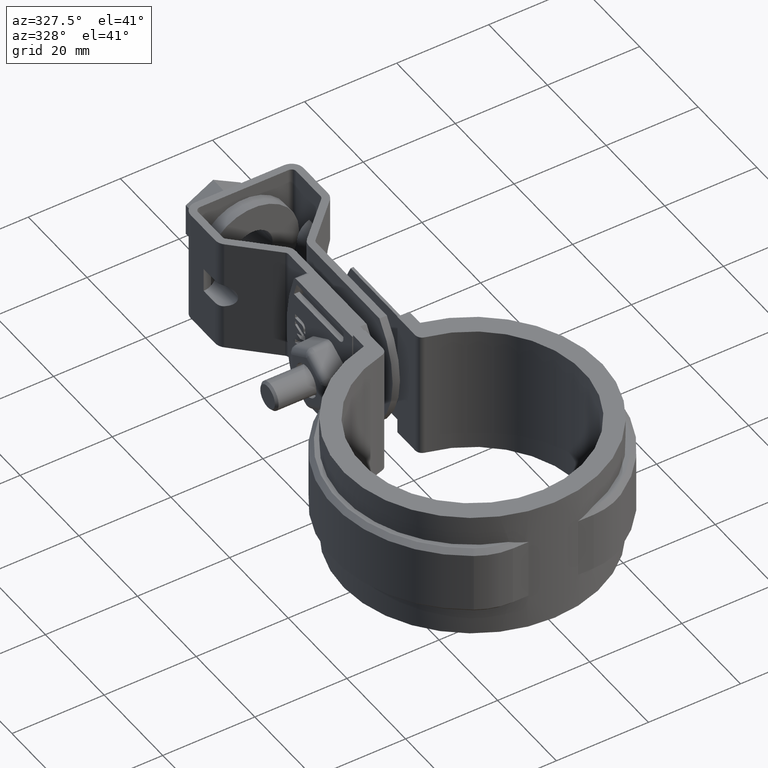
[diagram: clean part render]
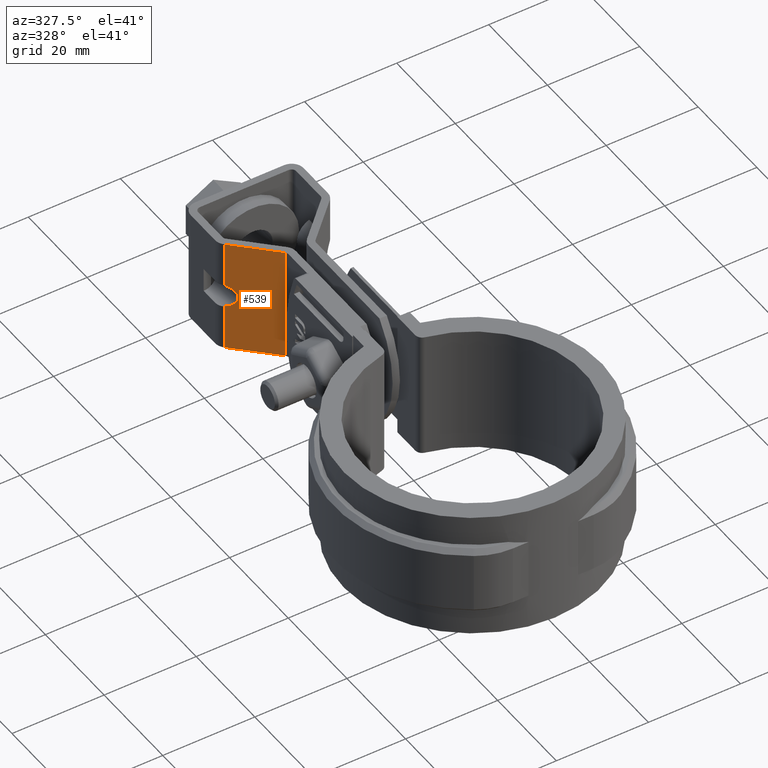
[diagram: same view with one face highlighted and labeled with its STEP entity id]
A machine part, auxiliary view. The second image highlights one B-rep face of the part: STEP entity #539.
In plain terms, the highlighted planar face has unit normal (-0.6983, -0.7158, 0).
Its self-contained STEP definition (entity closure, byte-faithful):
#539 = ADVANCED_FACE( '', ( #1079 ), #1080, .T. );
#1079 = FACE_OUTER_BOUND( '', #2423, .T. );
#1080 = PLANE( '', #2424 );
#2423 = EDGE_LOOP( '', ( #5517, #5518, #5519, #5520, #5521, #5522 ) );
#2424 = AXIS2_PLACEMENT_3D( '', #5523, #5524, #5525 );
#5517 = ORIENTED_EDGE( '', *, *, #7438, .F. );
#5518 = ORIENTED_EDGE( '', *, *, #7393, .T. );
#5519 = ORIENTED_EDGE( '', *, *, #7342, .T. );
#5520 = ORIENTED_EDGE( '', *, *, #7423, .T. );
#5521 = ORIENTED_EDGE( '', *, *, #7413, .F. );
#5522 = ORIENTED_EDGE( '', *, *, #7447, .T. );
#5523 = CARTESIAN_POINT( '', ( -3.90167616505223, 59.2550949504980, -6.12410261391361E-008 ) );
#5524 = DIRECTION( '', ( -0.698323835528018, -0.715781964520927, 3.65652942179987E-010 ) );
#5525 = DIRECTION( '', ( 0.715781964520927, -0.698323835528018, 3.53887801810090E-010 ) );
#7342 = EDGE_CURVE( '', #8607, #8605, #8608, .T. );
#7393 = EDGE_CURVE( '', #8688, #8607, #8691, .T. );
#7413 = EDGE_CURVE( '', #8725, #8726, #8727, .T. );
#7423 = EDGE_CURVE( '', #8605, #8726, #8741, .T. );
#7438 = EDGE_CURVE( '', #8688, #8762, #8763, .T. );
#7447 = EDGE_CURVE( '', #8725, #8762, #8776, .T. );
#8605 = VERTEX_POINT( '', #12136 );
#8607 = VERTEX_POINT( '', #12138 );
#8608 = LINE( '', #12139, #12140 );
#8688 = VERTEX_POINT( '', #12276 );
#8691 = LINE( '', #12280, #12281 );
#8725 = VERTEX_POINT( '', #12334 );
#8726 = VERTEX_POINT( '', #12335 );
#8727 = ELLIPSE( '', #12336, 3.70224472166266, 2.64999999999997 );
#8741 = LINE( '', #12371, #12372 );
#8762 = VERTEX_POINT( '', #12403 );
#8763 = LINE( '', #12404, #12405 );
#8776 = LINE( '', #12422, #12423 );
#12136 = CARTESIAN_POINT( '', ( -11.4656419729876, 66.6345734462094, -6.49807152530713E-008 ) );
#12138 = CARTESIAN_POINT( '', ( -3.30167616505020, 58.6697291239105, -6.09443884247440E-008 ) );
#12139 = CARTESIAN_POINT( '', ( -3.90167616505223, 59.2550949504980, -6.12410261391361E-008 ) );
#12140 = VECTOR( '', #14059, 1000.00000000000 );
#12276 = CARTESIAN_POINT( '', ( -3.30167616510114, 58.6697291111891, -25.0000000609444 ) );
#12280 = CARTESIAN_POINT( '', ( -3.30167616505020, 58.6697291239105, -6.09444023025318E-008 ) );
#12281 = VECTOR( '', #14136, 1000.00000000000 );
#12334 = CARTESIAN_POINT( '', ( -11.4656419730182, 66.6345734385606, -15.0312611112789 ) );
#12335 = CARTESIAN_POINT( '', ( -11.4656419730079, 66.6345734411367, -9.96873901868248 ) );
#12336 = AXIS2_PLACEMENT_3D( '', #14170, #14171, #14172 );
#12371 = CARTESIAN_POINT( '', ( -11.4656419729876, 66.6345734462094, -6.49807152530713E-008 ) );
#12372 = VECTOR( '', #14184, 1000.00000000000 );
#12403 = CARTESIAN_POINT( '', ( -11.4656419730386, 66.6345734334880, -25.0000000649807 ) );
#12404 = CARTESIAN_POINT( '', ( -3.90167616510318, 59.2550949377766, -25.0000000612410 ) );
#12405 = VECTOR( '', #14207, 1000.00000000000 );
#12422 = CARTESIAN_POINT( '', ( -11.4656419729876, 66.6345734462094, -6.49807152530713E-008 ) );
#12423 = VECTOR( '', #14224, 1000.00000000000 );
#14059 = DIRECTION( '', ( -0.715781964520927, 0.698323835528018, -3.53887801810090E-010 ) );
#14136 = DIRECTION( '', ( 2.03772028593234E-012, 5.08856008656157E-010, 1.00000000000000 ) );
#14170 = CARTESIAN_POINT( '', ( -12.2500000006364, 67.3998007484799, -12.5000000653685 ) );
#14171 = DIRECTION( '', ( -0.698323835528017, -0.715781964520928, 3.65652977282436E-010 ) );
#14172 = DIRECTION( '', ( -0.715781964520928, 0.698323835528017, -3.53887765830079E-010 ) );
#14184 = DIRECTION( '', ( -2.03765905561465E-012, -5.08856068393049E-010, -1.00000000000000 ) );
#14207 = DIRECTION( '', ( -0.715781964520927, 0.698323835528018, -3.53887801810090E-010 ) );
#14224 = DIRECTION( '', ( -2.03765905561465E-012, -5.08856068393049E-010, -1.00000000000000 ) );